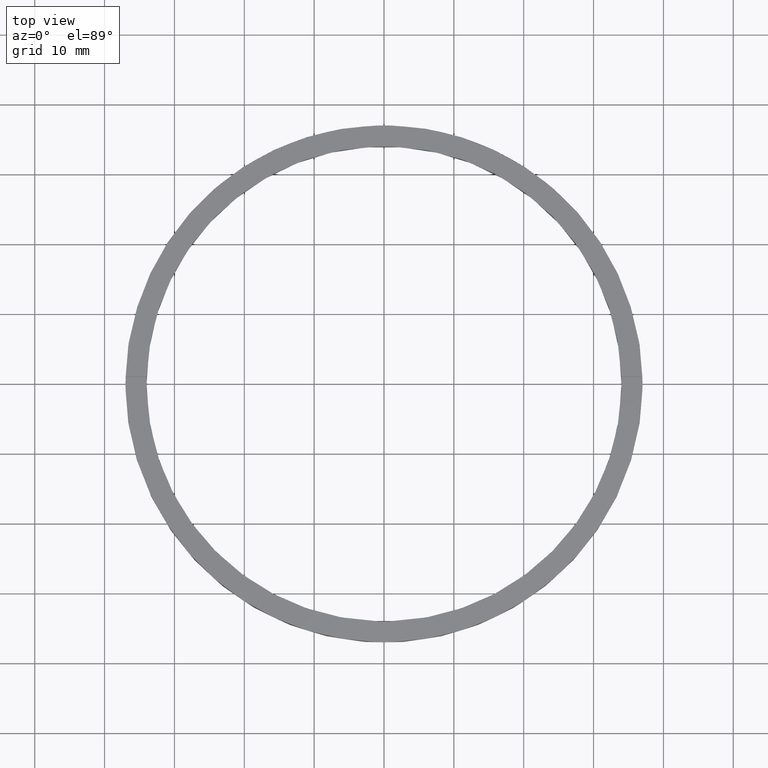
[diagram: clean part render]
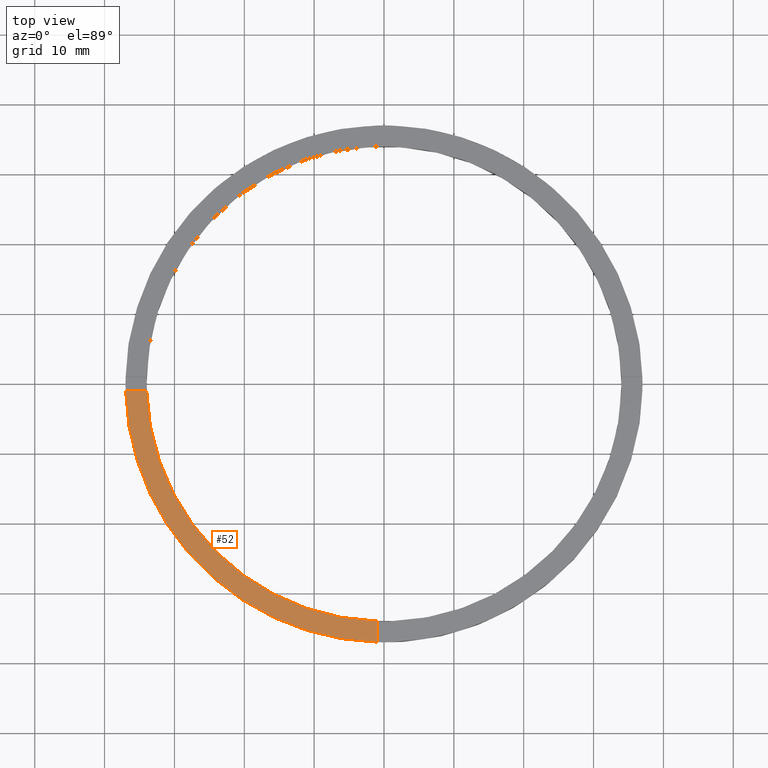
[diagram: same view with one face highlighted and labeled with its STEP entity id]
A machine part, top view. The second image highlights one B-rep face of the part: STEP entity #52.
In plain terms, the highlighted planar face has unit normal (0, 0, 1).
Its self-contained STEP definition (entity closure, byte-faithful):
#18 = LINE ( 'NONE', #25, #20 ) ;
#20 = VECTOR ( 'NONE', #572, 1000.000000000000000 ) ;
#25 = CARTESIAN_POINT ( 'NONE',  ( -1.000000000000161426, -27.00000000000017764, 3.500000000000000000 ) ) ;
#36 = DIRECTION ( 'NONE',  ( 0.000000000000000000, 0.000000000000000000, 1.000000000000000000 ) ) ;
#47 = LINE ( 'NONE', #442, #579 ) ;
#52 = ADVANCED_FACE ( 'NONE', ( #404 ), #366, .T. ) ;
#54 = CARTESIAN_POINT ( 'NONE',  ( 0.000000000000000000, 0.000000000000000000, 3.500000000000000000 ) ) ;
#68 = CARTESIAN_POINT ( 'NONE',  ( 0.000000000000000000, 0.000000000000000000, 3.500000000000000000 ) ) ;
#109 = VERTEX_POINT ( 'NONE', #433 ) ;
#112 = AXIS2_PLACEMENT_3D ( 'NONE', #54, #435, #138 ) ;
#119 = ORIENTED_EDGE ( 'NONE', *, *, #362, .F. ) ;
#125 = ORIENTED_EDGE ( 'NONE', *, *, #700, .F. ) ;
#138 = DIRECTION ( 'NONE',  ( 1.000000000000000000, 0.000000000000000000, -0.000000000000000000 ) ) ;
#159 = CIRCLE ( 'NONE', #290, 37.00000000000000000 ) ;
#181 = EDGE_CURVE ( 'NONE', #686, #461, #159, .T. ) ;
#210 = AXIS2_PLACEMENT_3D ( 'NONE', #68, #701, #417 ) ;
#227 = ORIENTED_EDGE ( 'NONE', *, *, #181, .T. ) ;
#289 = EDGE_CURVE ( 'NONE', #109, #461, #18, .T. ) ;
#290 = AXIS2_PLACEMENT_3D ( 'NONE', #550, #36, #757 ) ;
#362 = EDGE_CURVE ( 'NONE', #737, #109, #546, .T. ) ;
#366 = PLANE ( 'NONE',  #112 ) ;
#369 = CARTESIAN_POINT ( 'NONE',  ( -33.98529093593285211, -1.000000000000026867, 3.500000000000000000 ) ) ;
#395 = CARTESIAN_POINT ( 'NONE',  ( -36.98648401781385786, -1.000000000000027311, 3.500000000000000000 ) ) ;
#404 = FACE_OUTER_BOUND ( 'NONE', #468, .T. ) ;
#417 = DIRECTION ( 'NONE',  ( 1.000000000000000000, 0.000000000000000000, 0.000000000000000000 ) ) ;
#433 = CARTESIAN_POINT ( 'NONE',  ( -1.000000000000160538, -33.98529093593285211, 3.500000000000000000 ) ) ;
#435 = DIRECTION ( 'NONE',  ( 0.000000000000000000, 0.000000000000000000, 1.000000000000000000 ) ) ;
#442 = CARTESIAN_POINT ( 'NONE',  ( -27.00000000000018474, -1.000000000000025313, 3.500000000000000000 ) ) ;
#461 = VERTEX_POINT ( 'NONE', #638 ) ;
#468 = EDGE_LOOP ( 'NONE', ( #758, #119, #125, #227 ) ) ;
#546 = CIRCLE ( 'NONE', #210, 34.00000000000000000 ) ;
#550 = CARTESIAN_POINT ( 'NONE',  ( 0.000000000000000000, 0.000000000000000000, 3.500000000000000000 ) ) ;
#572 = DIRECTION ( 'NONE',  ( 1.301042606982605074E-16, -1.000000000000000000, 0.000000000000000000 ) ) ;
#579 = VECTOR ( 'NONE', #627, 1000.000000000000000 ) ;
#627 = DIRECTION ( 'NONE',  ( 1.000000000000000000, 1.951563910473907735E-16, -0.000000000000000000 ) ) ;
#638 = CARTESIAN_POINT ( 'NONE',  ( -1.000000000000160094, -36.98648401781385076, 3.500000000000000000 ) ) ;
#686 = VERTEX_POINT ( 'NONE', #395 ) ;
#700 = EDGE_CURVE ( 'NONE', #686, #737, #47, .T. ) ;
#701 = DIRECTION ( 'NONE',  ( 0.000000000000000000, 0.000000000000000000, 1.000000000000000000 ) ) ;
#737 = VERTEX_POINT ( 'NONE', #369 ) ;
#757 = DIRECTION ( 'NONE',  ( 1.000000000000000000, 0.000000000000000000, 0.000000000000000000 ) ) ;
#758 = ORIENTED_EDGE ( 'NONE', *, *, #289, .F. ) ;